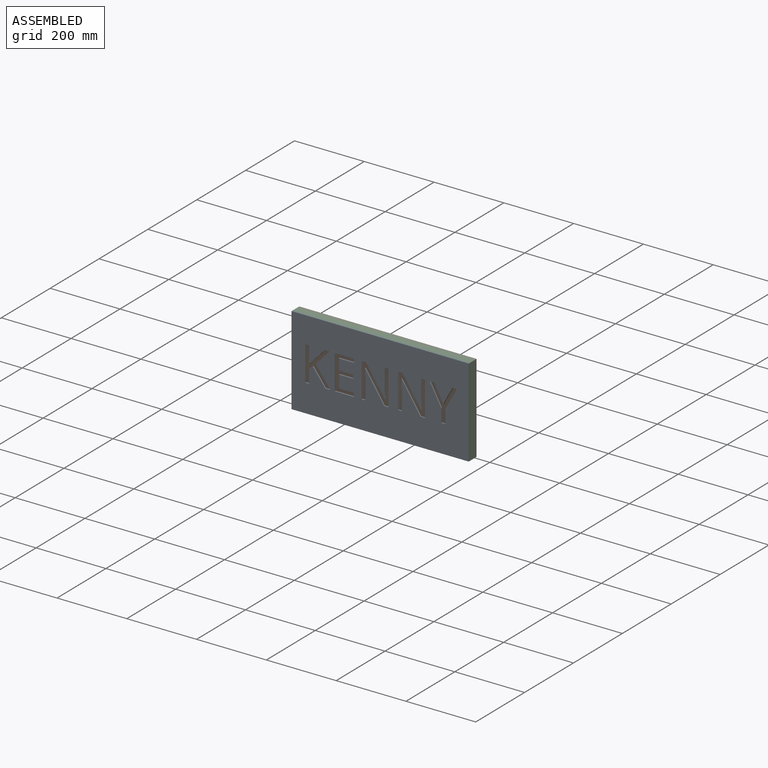
[diagram: assembled view]
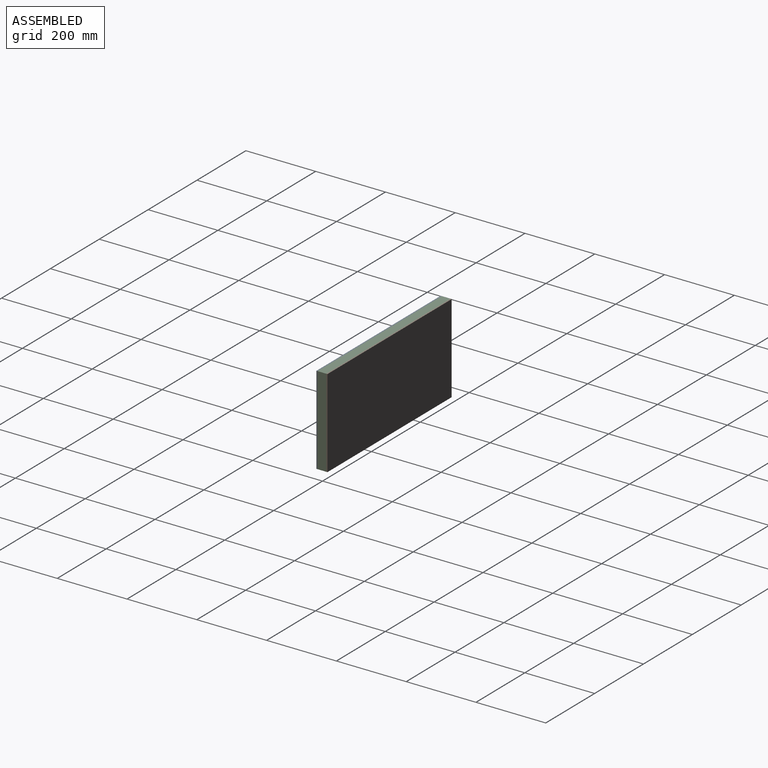
[diagram: assembled view, second angle]
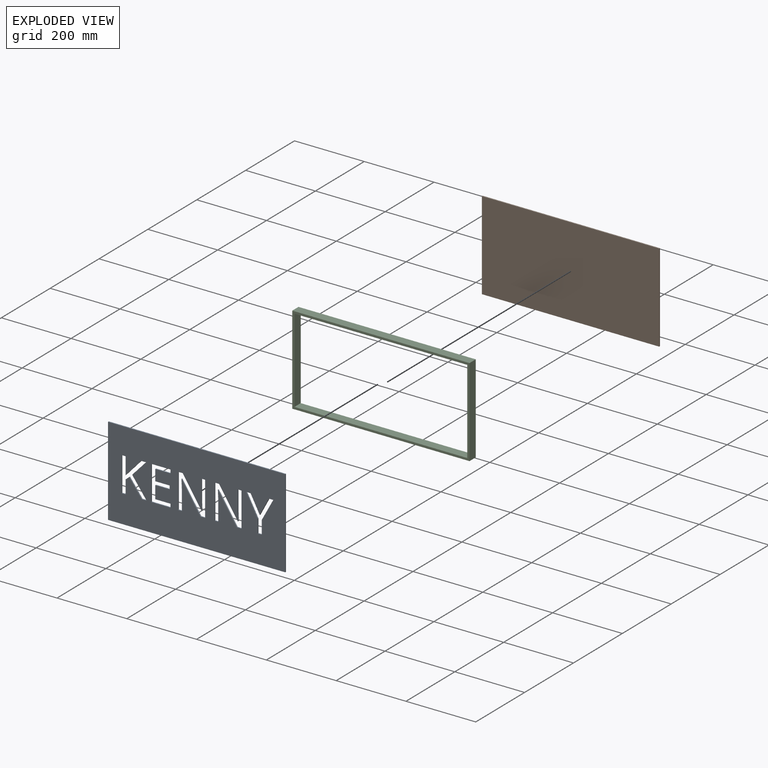
[diagram: exploded view]
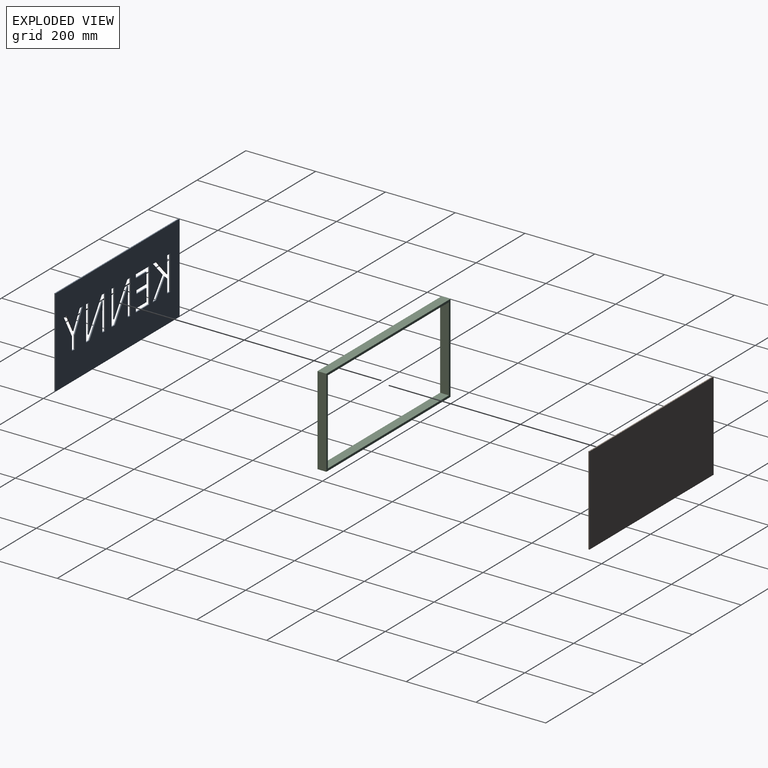
[diagram: exploded view, second angle]
ASSEMBLY  parts=3 mates=2
PART A: 69 faces, bbox 508x3.2x254 mm
  f0: plane 508x3.18mm, normal (0,0,1), area 1612.9mm2, adj f1,f66,f67,f68
  f1: plane 254x3.18mm, normal (-1,0,0), area 806.5mm2, adj f0,f2,f67,f68
  f2: plane 508x3.18mm, normal (0,0,-1), area 1612.9mm2, adj f1,f66,f67,f68
  f3: plane 49.43x26.17mm, normal (-0.88,0,-0.47), area 177.6mm2, adj f4,f61,f67,f68
  f4: plane 49.43x26.35mm, normal (0.88,0,-0.47), area 177.8mm2, adj f3,f5,f67,f68
  f5: plane 12.44x3.18mm, normal (0,0,-1), area 39.5mm2, adj f4,f6,f67,f68
  f6: plane 60.5x32.99mm, normal (-0.88,0,0.48), area 218.8mm2, adj f5,f7,f67,f68
  f7: plane 38.33x3.18mm, normal (-1,0,0), area 121.7mm2, adj f6,f8,f67,f68
  f8: plane 11.62x3.18mm, normal (0,0,1), area 36.9mm2, adj f7,f9,f67,f68
  f9: plane 37.79x3.18mm, normal (1,0,0), area 120mm2, adj f8,f10,f67,f68
  f10: plane 61.04x32.92mm, normal (0.88,0,0.47), area 220.2mm2, adj f9,f61,f67,f68
  f11: plane 98.83x3.18mm, normal (-1,0,0), area 313.8mm2, adj f12,f62,f67,f68
  f12: plane 13.11x3.18mm, normal (0,0,1), area 41.6mm2, adj f11,f13,f67,f68
  f13: plane 82.93x54.01mm, normal (0.84,0,0.55), area 314.2mm2, adj f12,f14,f67,f68
  f14: plane 3.18x0.54mm, normal (0,0,1), area 1.7mm2, adj f13,f15,f67,f68
  f15: extruded ~26.76x3.18mm, area 85mm2, adj f14,f16,f67,f68
  f16: plane 56.18x3.18mm, normal (-1,0,0), area 178.4mm2, adj f15,f17,f67,f68
  f17: plane 10.62x3.18mm, normal (0,0,1), area 33.7mm2, adj f16,f18,f67,f68
  f18: plane 98.83x3.18mm, normal (1,0,0), area 313.8mm2, adj f17,f19,f67,f68
  f19: plane 12.98x3.18mm, normal (0,0,-1), area 41.2mm2, adj f18,f20,f67,f68
  f20: plane 82.61x53.88mm, normal (-0.84,0,-0.55), area 313.2mm2, adj f19,f21,f67,f68
  f21: plane 3.18x0.54mm, normal (0,0,-1), area 1.7mm2, adj f20,f22,f67,f68
  f22: extruded ~11.72x3.18mm, area 37.3mm2, adj f21,f23,f67,f68
  f23: extruded ~14.17x3.18mm, area 45mm2, adj f22,f24,f67,f68
  f24: plane 56.72x3.18mm, normal (1,0,0), area 180.1mm2, adj f23,f62,f67,f68
  f25: plane 98.83x3.18mm, normal (-1,0,0), area 313.8mm2, adj f26,f63,f67,f68
  f26: plane 13.11x3.18mm, normal (0,0,1), area 41.6mm2, adj f25,f27,f67,f68
  f27: plane 82.93x54.01mm, normal (0.84,0,0.55), area 314.2mm2, adj f26,f28,f67,f68
  f28: plane 3.18x0.54mm, normal (0,0,1), area 1.7mm2, adj f27,f29,f67,f68
  f29: extruded ~26.76x3.18mm, area 85mm2, adj f28,f30,f67,f68
  f30: plane 56.18x3.18mm, normal (-1,0,0), area 178.4mm2, adj f29,f31,f67,f68
  f31: plane 10.62x3.18mm, normal (0,0,1), area 33.7mm2, adj f30,f32,f67,f68
  f32: plane 98.83x3.18mm, normal (1,0,0), area 313.8mm2, adj f31,f33,f67,f68
  f33: plane 12.98x3.18mm, normal (0,0,-1), area 41.2mm2, adj f32,f34,f67,f68
  f34: plane 82.61x53.88mm, normal (-0.84,0,-0.55), area 313.2mm2, adj f33,f35,f67,f68
  f35: plane 3.18x0.54mm, normal (0,0,-1), area 1.7mm2, adj f34,f36,f67,f68
  f36: extruded ~11.72x3.18mm, area 37.3mm2, adj f35,f37,f67,f68
  f37: extruded ~14.17x3.18mm, area 45mm2, adj f36,f38,f67,f68
  f38: plane 56.72x3.18mm, normal (1,0,0), area 180.1mm2, adj f37,f63,f67,f68
  f39: plane 10.28x3.18mm, normal (-1,0,0), area 32.6mm2, adj f40,f64,f67,f68
  f40: plane 55.1x3.18mm, normal (0,0,1), area 174.9mm2, adj f39,f41,f67,f68
  f41: plane 98.83x3.18mm, normal (1,0,0), area 313.8mm2, adj f40,f42,f67,f68
  f42: plane 55.1x3.18mm, normal (0,0,-1), area 174.9mm2, adj f41,f43,f67,f68
  f43: plane 10.21x3.18mm, normal (-1,0,0), area 32.4mm2, adj f42,f44,f67,f68
  f44: plane 43.61x3.18mm, normal (0,0,1), area 138.5mm2, adj f43,f45,f67,f68
  f45: plane 31.84x3.18mm, normal (-1,0,0), area 101.1mm2, adj f44,f46,f67,f68
  f46: plane 40.97x3.18mm, normal (0,0,-1), area 130.1mm2, adj f45,f47,f67,f68
  f47: plane 10.15x3.18mm, normal (-1,0,0), area 32.2mm2, adj f46,f48,f67,f68
  f48: plane 40.97x3.18mm, normal (0,0,1), area 130.1mm2, adj f47,f49,f67,f68
  f49: plane 36.36x3.18mm, normal (-1,0,0), area 115.5mm2, adj f48,f64,f67,f68
  f50: plane 55.9x41.23mm, normal (-0.8,0,-0.59), area 220.5mm2, adj f51,f65,f67,f68
  f51: plane 13.52x3.18mm, normal (0,0,1), area 42.9mm2, adj f50,f52,f67,f68
  f52: plane 47.94x36.02mm, normal (0.8,0,0.6), area 190.4mm2, adj f51,f53,f67,f68
  f53: plane 10.36x9.19mm, normal (-0.66,0,0.75), area 44mm2, adj f52,f54,f67,f68
  f54: plane 38.74x3.18mm, normal (-1,0,0), area 123mm2, adj f53,f55,f67,f68
  f55: plane 11.49x3.18mm, normal (0,0,1), area 36.5mm2, adj f54,f56,f67,f68
  f56: plane 98.83x3.18mm, normal (1,0,0), area 313.8mm2, adj f55,f57,f67,f68
  f57: plane 11.49x3.18mm, normal (0,0,-1), area 36.5mm2, adj f56,f58,f67,f68
  f58: plane 49.02x3.18mm, normal (-1,0,0), area 155.6mm2, adj f57,f59,f67,f68
  f59: plane 49.02x44.82mm, normal (0.74,0,-0.67), area 210.9mm2, adj f58,f60,f67,f68
  f60: plane 13.58x3.18mm, normal (0,0,-1), area 43.1mm2, adj f59,f65,f67,f68
  f61: plane 12.57x3.18mm, normal (0,0,-1), area 39.9mm2, adj f3,f10,f67,f68
  f62: plane 10.75x3.18mm, normal (0,0,-1), area 34.1mm2, adj f11,f24,f67,f68
  f63: plane 10.75x3.18mm, normal (0,0,-1), area 34.1mm2, adj f25,f38,f67,f68
  f64: plane 43.61x3.18mm, normal (0,0,-1), area 138.5mm2, adj f39,f49,f67,f68
  f65: plane 42.94x39.74mm, normal (-0.73,0,0.68), area 185.7mm2, adj f50,f60,f67,f68
  f66: plane 254x3.18mm, normal (1,0,0), area 806.5mm2, adj f0,f2,f67,f68
  f67: plane 508x254mm, normal (0,-1,0), area 115710.8mm2, adj f0,f1,f2,f3,f4,f5,f6,f7
  f68: plane 508x254mm, normal (0,1,0), area 115710.8mm2, adj f0,f1,f2,f3,f4,f5,f6,f7
PART B: 6 faces, bbox 508x3.2x254 mm
  f0: plane 508x3.18mm, normal (0,0,1), area 1612.9mm2, adj f1,f3,f4,f5
  f1: plane 254x3.18mm, normal (-1,0,0), area 806.5mm2, adj f0,f2,f4,f5
  f2: plane 508x3.18mm, normal (0,0,-1), area 1612.9mm2, adj f1,f3,f4,f5
  f3: plane 254x3.18mm, normal (1,0,0), area 806.5mm2, adj f0,f2,f4,f5
  f4: plane 508x254mm, normal (0,-1,0), area 129032mm2, adj f0,f1,f2,f3
  f5: plane 508x254mm, normal (0,1,0), area 129032mm2, adj f0,f1,f2,f3
PART C: 10 faces, bbox 508x25.4x254 mm
  f0: plane 508x25.4mm, normal (0,0,1), area 12903.2mm2, adj f1,f7,f8,f9
  f1: plane 254x25.4mm, normal (-1,0,0), area 6451.6mm2, adj f0,f2,f8,f9
  f2: plane 508x25.4mm, normal (0,0,-1), area 12903.2mm2, adj f1,f7,f8,f9
  f3: plane 495.3x25.4mm, normal (0,0,-1), area 12580.6mm2, adj f4,f6,f8,f9
  f4: plane 241.3x25.4mm, normal (-1,0,0), area 6129mm2, adj f3,f5,f8,f9
  f5: plane 495.3x25.4mm, normal (0,0,1), area 12580.6mm2, adj f4,f6,f8,f9
  f6: plane 241.3x25.4mm, normal (1,0,0), area 6129mm2, adj f3,f5,f8,f9
  f7: plane 254x25.4mm, normal (1,0,0), area 6451.6mm2, adj f0,f2,f8,f9
  f8: plane 508x254mm, normal (0,-1,0), area 9516.1mm2, adj f0,f1,f2,f3,f4,f5,f6,f7
  f9: plane 508x254mm, normal (0,1,0), area 9516.1mm2, adj f0,f1,f2,f3,f4,f5,f6,f7
PLACE A t=(-86.25,-36.79,17.13)mm
PLACE B t=(-86.25,-8.22,17.13)mm
PLACE C t=(-86.25,-11.39,17.13)mm
MATE fastened C.f8 <-> A.f68  axis (0,-1,0) through (-340.25,-36.79,144.13)mm
MATE fastened B.f4 <-> C.f9  axis (0,-1,0) through (-340.25,-11.39,144.13)mm
